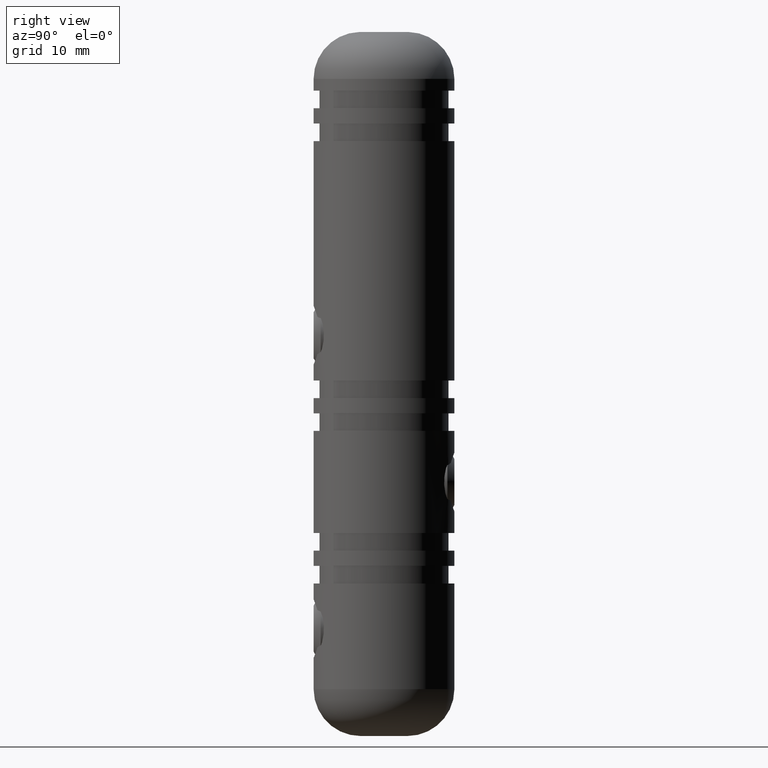
[diagram: clean part render]
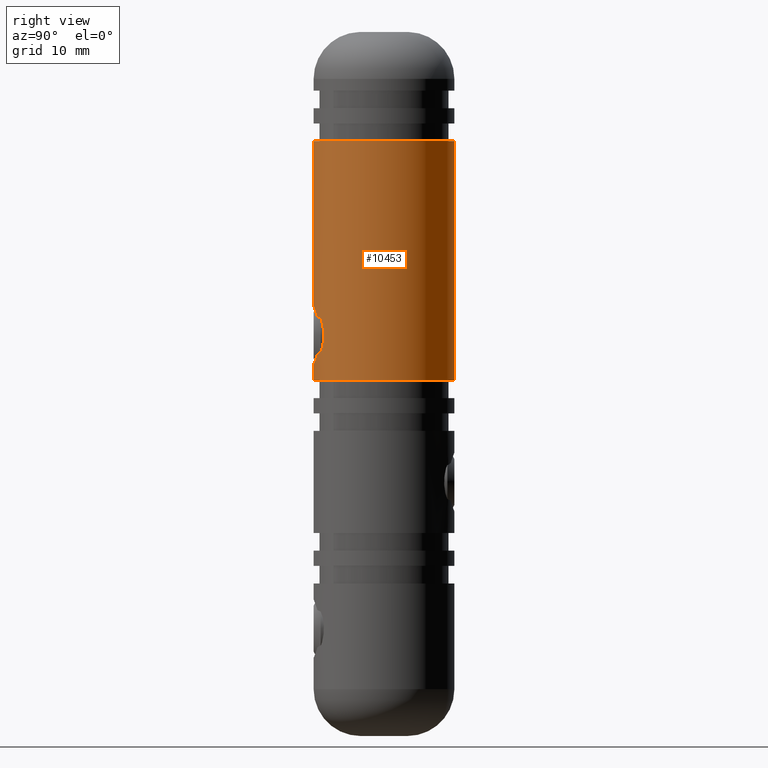
[diagram: same view with one face highlighted and labeled with its STEP entity id]
A machine part, right view. The second image highlights one B-rep face of the part: STEP entity #10453.
In plain terms, the highlighted cylindrical surface (partial cylindrical patch) has radius 6 mm, axis along (0, 0, 1).
Its self-contained STEP definition (entity closure, byte-faithful):
#330 = LINE ( 'NONE', #3829, #6719 ) ;
#638 = CARTESIAN_POINT ( 'NONE',  ( 1.259538159729436800, -5.867927242172498800, 1.984439642035611000 ) ) ;
#753 = VERTEX_POINT ( 'NONE', #6421 ) ;
#763 = CARTESIAN_POINT ( 'NONE',  ( 0.8115992888655360100, -5.946860788343238700, 1.779642376573268500 ) ) ;
#831 = CARTESIAN_POINT ( 'NONE',  ( 0.0000000000000000000, -5.999999999999985800, 1.649999999999998400 ) ) ;
#1499 = EDGE_CURVE ( 'NONE', #16029, #2273, #16350, .T. ) ;
#1741 = DIRECTION ( 'NONE',  ( -0.0000000000000000000, 6.237694939725493400E-017, 1.000000000000000000 ) ) ;
#2209 = CARTESIAN_POINT ( 'NONE',  ( 1.985776905186849000, -5.662680758676478900, 2.622596471327093500 ) ) ;
#2241 = CARTESIAN_POINT ( 'NONE',  ( 0.0000000000000000000, -5.999999999999985800, 0.2999999999999916100 ) ) ;
#2273 = VERTEX_POINT ( 'NONE', #5025 ) ;
#2347 = B_SPLINE_CURVE_WITH_KNOTS ( 'NONE', 3,
 ( #10187, #3478, #16999, #3658, #13109, #12995, #13171, #7566, #4839, #12936, #6121, #4961, #9063, #15726, #7740, #4893, #14438, #14554, #14377, #7624, #17054, #2209, #8892, #6235, #8946, #638, #11744, #763, #15790, #9007, #10308, #831 ),
 .UNSPECIFIED., .F., .F.,
 ( 4, 2, 2, 2, 2, 2, 2, 2, 2, 2, 2, 2, 2, 2, 2, 4 ),
 ( 0.007907415464232896200, 0.008401230926880314700, 0.008895046389527731500, 0.009388861852175150000, 0.009882677314822568500, 0.01037649277746998500, 0.01087030824011740400, 0.01136412370276482200, 0.01185793916541224100, 0.01284557009070708000, 0.01333938555335450000, 0.01383320101600191800, 0.01432701647864933700, 0.01482083194129675500, 0.01531464740394417400, 0.01580846286659159200 ),
 .UNSPECIFIED. ) ;
#2657 = CIRCLE ( 'NONE', #11210, 5.999999999999984000 ) ;
#2680 = CARTESIAN_POINT ( 'NONE',  ( 7.347880794884099000E-016, 5.999999999999982200, 0.2999999999999908900 ) ) ;
#2699 = CARTESIAN_POINT ( 'NONE',  ( -1.028502964275223300E-020, -5.999999999999985800, 6.649999999999996800 ) ) ;
#2785 = CARTESIAN_POINT ( 'NONE',  ( 0.0000000000000000000, -5.999999999999984000, 30.00000000000000000 ) ) ;
#2857 = VERTEX_POINT ( 'NONE', #2680 ) ;
#3461 = CARTESIAN_POINT ( 'NONE',  ( 0.0000000000000000000, -1.852595397098471600E-015, 0.2999999999999912700 ) ) ;
#3478 = CARTESIAN_POINT ( 'NONE',  ( 0.1646041220039574900, -5.999999999999986700, 6.650000000000000400 ) ) ;
#3598 = CARTESIAN_POINT ( 'NONE',  ( 0.0000000000000000000, 3.851859888774471700E-031, 30.00000000000000000 ) ) ;
#3658 = CARTESIAN_POINT ( 'NONE',  ( 0.6555787703010415000, -5.966290413473925200, 6.568161813088484500 ) ) ;
#3774 = DIRECTION ( 'NONE',  ( 0.0000000000000000000, -1.000000000000000000, 0.0000000000000000000 ) ) ;
#3778 = EDGE_CURVE ( 'NONE', #16029, #2857, #7173, .T. ) ;
#3829 = CARTESIAN_POINT ( 'NONE',  ( 7.347880794884099000E-016, 5.999999999999984000, 30.00000000000000000 ) ) ;
#3971 = DIRECTION ( 'NONE',  ( -0.0000000000000000000, 6.237694939725493400E-017, 1.000000000000000000 ) ) ;
#4322 = CYLINDRICAL_SURFACE ( 'NONE', #4382, 5.999999999999984000 ) ;
#4382 = AXIS2_PLACEMENT_3D ( 'NONE', #3598, #9126, #3774 ) ;
#4494 = DIRECTION ( 'NONE',  ( 0.0000000000000000000, -1.000000000000000000, 0.0000000000000000000 ) ) ;
#4701 = DIRECTION ( 'NONE',  ( 0.0000000000000000000, -1.000000000000000000, 6.324512672832125600E-017 ) ) ;
#4809 = VECTOR ( 'NONE', #11251, 1000.000000000000000 ) ;
#4839 = CARTESIAN_POINT ( 'NONE',  ( 1.654382943241683200, -5.768663301305676500, 6.031346931504433700 ) ) ;
#4893 = CARTESIAN_POINT ( 'NONE',  ( 2.483167037994902700, -5.462156378440692400, 4.483100656855352600 ) ) ;
#4961 = CARTESIAN_POINT ( 'NONE',  ( 2.166263312547637400, -5.596114381308990600, 5.408327122135948400 ) ) ;
#5025 = CARTESIAN_POINT ( 'NONE',  ( 0.0000000000000000000, -5.999999999999985800, 1.649999999999998400 ) ) ;
#5088 = EDGE_CURVE ( 'NONE', #2857, #753, #330, .T. ) ;
#5257 = ORIENTED_EDGE ( 'NONE', *, *, #6912, .F. ) ;
#6002 = VERTEX_POINT ( 'NONE', #6179 ) ;
#6018 = EDGE_CURVE ( 'NONE', #9236, #2273, #2347, .T. ) ;
#6121 = CARTESIAN_POINT ( 'NONE',  ( 1.986351737220498600, -5.662472930091964500, 5.676594465348904900 ) ) ;
#6179 = CARTESIAN_POINT ( 'NONE',  ( 0.0000000000000000000, -5.999999999999984900, 20.69999999999999600 ) ) ;
#6235 = CARTESIAN_POINT ( 'NONE',  ( 1.654032730495418100, -5.768759283832327600, 2.268374034229544200 ) ) ;
#6421 = CARTESIAN_POINT ( 'NONE',  ( 7.347880794884099000E-016, 5.999999999999983100, 20.69999999999999600 ) ) ;
#6719 = VECTOR ( 'NONE', #15970, 1000.000000000000000 ) ;
#6896 = LINE ( 'NONE', #13824, #4809 ) ;
#6912 = EDGE_CURVE ( 'NONE', #9236, #6002, #6896, .T. ) ;
#7173 = CIRCLE ( 'NONE', #10940, 5.999999999999984000 ) ;
#7276 = ORIENTED_EDGE ( 'NONE', *, *, #8409, .F. ) ;
#7566 = CARTESIAN_POINT ( 'NONE',  ( 1.528716671483799400, -5.803628135650777500, 6.134746209234824800 ) ) ;
#7624 = CARTESIAN_POINT ( 'NONE',  ( 2.244716869438426100, -5.564698557009170300, 3.037411570348665300 ) ) ;
#7740 = CARTESIAN_POINT ( 'NONE',  ( 2.418087471178596000, -5.491277066662528100, 4.805688621154088100 ) ) ;
#8409 = EDGE_CURVE ( 'NONE', #6002, #753, #2657, .T. ) ;
#8688 = DIRECTION ( 'NONE',  ( -0.0000000000000000000, 6.237694939725493400E-017, 1.000000000000000000 ) ) ;
#8892 = CARTESIAN_POINT ( 'NONE',  ( 1.883431010051971600, -5.697990486015784000, 2.498022948408078500 ) ) ;
#8946 = CARTESIAN_POINT ( 'NONE',  ( 1.527725331987267700, -5.803883338356236300, 2.164516847262143400 ) ) ;
#9007 = CARTESIAN_POINT ( 'NONE',  ( 0.3334989678857757700, -5.992895555958769500, 1.666922929660757900 ) ) ;
#9063 = CARTESIAN_POINT ( 'NONE',  ( 2.244635986508916900, -5.564731696078997200, 5.262763928491108500 ) ) ;
#9126 = DIRECTION ( 'NONE',  ( -0.0000000000000000000, 6.237694939725493400E-017, 1.000000000000000000 ) ) ;
#9236 = VERTEX_POINT ( 'NONE', #2699 ) ;
#9905 = CARTESIAN_POINT ( 'NONE',  ( 0.0000000000000000000, -5.801056293944706400E-016, 20.69999999999999600 ) ) ;
#9908 = ORIENTED_EDGE ( 'NONE', *, *, #1499, .F. ) ;
#10187 = CARTESIAN_POINT ( 'NONE',  ( -1.028502964275223300E-020, -5.999999999999985800, 6.649999999999996800 ) ) ;
#10308 = CARTESIAN_POINT ( 'NONE',  ( 0.1671054223428515800, -5.999999999999984000, 1.649999999999998100 ) ) ;
#10453 = ADVANCED_FACE ( 'NONE', ( #16225 ), #4322, .T. ) ;
#10940 = AXIS2_PLACEMENT_3D ( 'NONE', #3461, #8688, #4701 ) ;
#11210 = AXIS2_PLACEMENT_3D ( 'NONE', #9905, #1741, #4494 ) ;
#11251 = DIRECTION ( 'NONE',  ( -0.0000000000000000000, 6.237694939725493400E-017, 1.000000000000000000 ) ) ;
#11744 = CARTESIAN_POINT ( 'NONE',  ( 1.116433988101044500, -5.897238488634677400, 1.907041280175432000 ) ) ;
#12778 = VECTOR ( 'NONE', #3971, 1000.000000000000000 ) ;
#12936 = CARTESIAN_POINT ( 'NONE',  ( 1.884182109196807600, -5.697746658645206400, 5.801153226975873900 ) ) ;
#12995 = CARTESIAN_POINT ( 'NONE',  ( 1.114788231091695900, -5.897521238554077200, 6.393690140102767900 ) ) ;
#13109 = CARTESIAN_POINT ( 'NONE',  ( 0.8121109664669671200, -5.946762593001426300, 6.520100002767610400 ) ) ;
#13171 = CARTESIAN_POINT ( 'NONE',  ( 1.260060590211529200, -5.867820848286495300, 6.315280463528986300 ) ) ;
#13824 = CARTESIAN_POINT ( 'NONE',  ( 0.0000000000000000000, -5.999999999999984000, 30.00000000000000000 ) ) ;
#14377 = CARTESIAN_POINT ( 'NONE',  ( 2.433024516705509100, -5.486245265971613000, 3.489077120949952300 ) ) ;
#14438 = CARTESIAN_POINT ( 'NONE',  ( 2.499958286588245000, -5.454375176628035500, 4.315426999768896500 ) ) ;
#14554 = CARTESIAN_POINT ( 'NONE',  ( 2.500083187475625300, -5.454317928402376800, 3.821040787578747500 ) ) ;
#14559 = ORIENTED_EDGE ( 'NONE', *, *, #3778, .T. ) ;
#15726 = CARTESIAN_POINT ( 'NONE',  ( 2.370252263024602800, -5.512398186896861700, 4.961503839860641900 ) ) ;
#15790 = CARTESIAN_POINT ( 'NONE',  ( 0.6550088422699789100, -5.966320652023272300, 1.731765785666423900 ) ) ;
#15798 = ORIENTED_EDGE ( 'NONE', *, *, #6018, .T. ) ;
#15970 = DIRECTION ( 'NONE',  ( -0.0000000000000000000, 6.237694939725493400E-017, 1.000000000000000000 ) ) ;
#16012 = EDGE_LOOP ( 'NONE', ( #14559, #17388, #7276, #5257, #15798, #9908 ) ) ;
#16029 = VERTEX_POINT ( 'NONE', #2241 ) ;
#16225 = FACE_OUTER_BOUND ( 'NONE', #16012, .T. ) ;
#16350 = LINE ( 'NONE', #2785, #12778 ) ;
#16999 = CARTESIAN_POINT ( 'NONE',  ( 0.3316893159624689800, -5.993028201139773100, 6.633399338814673900 ) ) ;
#17054 = CARTESIAN_POINT ( 'NONE',  ( 2.166378616493327000, -5.596076034317148300, 2.891796857985023700 ) ) ;
#17388 = ORIENTED_EDGE ( 'NONE', *, *, #5088, .T. ) ;